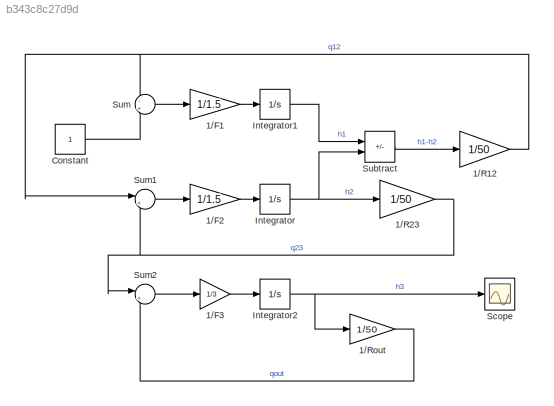
MODEL slx_b343c8c27d9d
KIND model
CONFIG AbsTol = auto
CONFIG EnableMultiTasking = off
CONFIG FixedStep = auto
CONFIG MaxStep = auto
CONFIG MinStep = auto
CONFIG RelTol = 1e-3
CONFIG SampleTimeConstraint = Unconstrained
CONFIG SolverName = VariableStepAuto
CONFIG StartTime = 0.0
CONFIG StopTime = 10.0
WORKSPACE source: external: MATLAB File  (data not in archive)
BLOCK [Gain] 1//F1
  Gain = 1/1.5
BLOCK [Gain] 1//F2
  Gain = 1/1.5
BLOCK [Gain] 1//F3
  Gain = 1/3
BLOCK [Gain] 1//R12
  Gain = 1/50
BLOCK [Gain] 1//R23
  Gain = 1/50
BLOCK [Gain] 1//Rout
  Gain = 1/50
BLOCK [Constant] Constant
BLOCK [Integrator] Integrator
BLOCK [Integrator] Integrator1
BLOCK [Integrator] Integrator2
BLOCK [Scope] Scope
  ActiveDisplayYMaximum = 0.0099057041793197374
  ActiveDisplayYMinimum = -0.0011006337977021929
  Floating = off
  GraphicalSettings = {"Style":{"BackgroundColor":[0.12941176470588237,0.12941176470588237,0.12941176470588237],"AxesColor":[0.07058823529411765,0.07058823529411765,0.07058823529411765],"LabelsColor":[0.8509803921568627,0.8509803921568627,0.8509803921568627],"PreserveColors":false,"Visible":[true],"LineStyle":["-"],"LineWidth":[1.5],"BarWidth":[0.9],"LineColor":["auto"],"LineFaceAlpha":[1],"LineEdgeAlpha":[1],"Marker":...<+1886ch>
  MultipleDisplayCache = [{"MaxYLimMag":0.0099057041793197374,"MaxYLimReal":0.0099057041793197374,"MinYLimMag":0,"MinYLimReal":-0.0011006337977021929,"PlotAsMagnitudePhase":false,"ShowGrid":true,"ShowLegend":false,"Title":"%<SignalLabel>","YLabel":""}]
  NumInputPorts = 1
  ScopeFrameLocation = window
  WasSavedAsWebScope = on
  WindowPosition = [1000.000000,510.000000,560.000000,420.000000,]
BLOCK [Sum] Subtract
  IconShape = rectangular
  Inputs = +-
BLOCK [Sum] Sum
  Inputs = -+
BLOCK [Sum] Sum1
  Inputs = |+-
BLOCK [Sum] Sum2
  Inputs = |+-
LINE 1//F1:1 -> Integrator1:1
LINE 1//F2:1 -> Integrator:1
LINE 1//F3:1 -> Integrator2:1
NET 1//R12:1 -> Sum1:1, Sum:1
NET 1//R23:1 -> Sum1:2, Sum2:1
LINE 1//Rout:1 -> Sum2:2
LINE Constant:1 -> Sum:2
LINE Integrator1:1 -> Subtract:1
NET Integrator2:1 -> 1//Rout:1, Scope:1
NET Integrator:1 -> 1//R23:1, Subtract:2
LINE Subtract:1 -> 1//R12:1
LINE Sum1:1 -> 1//F2:1
LINE Sum2:1 -> 1//F3:1
LINE Sum:1 -> 1//F1:1
note: NET lines group one-source signal fan-out (src -> all destinations, sorted); 1:1 wires keep LINE
